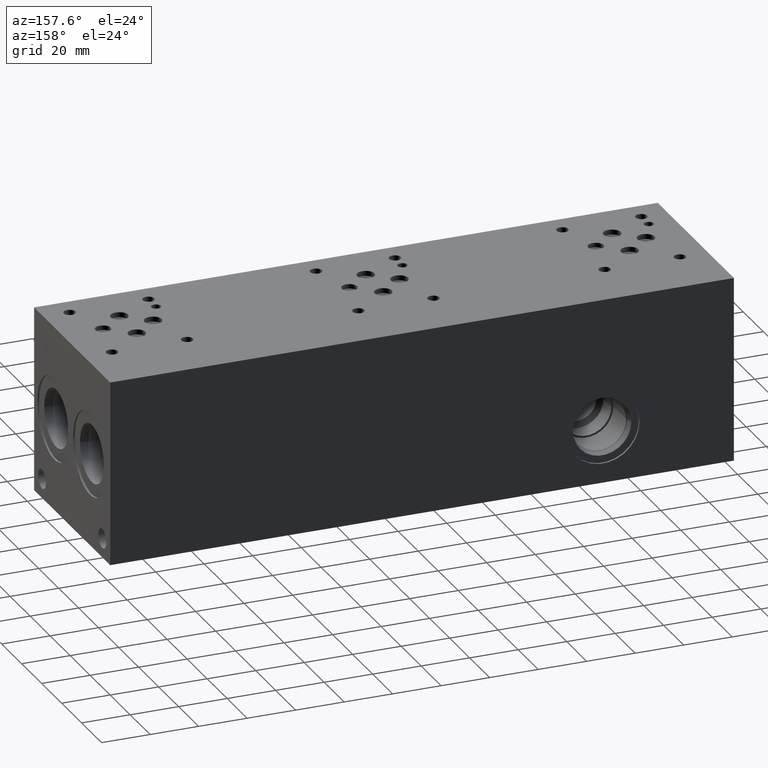
[diagram: clean part render]
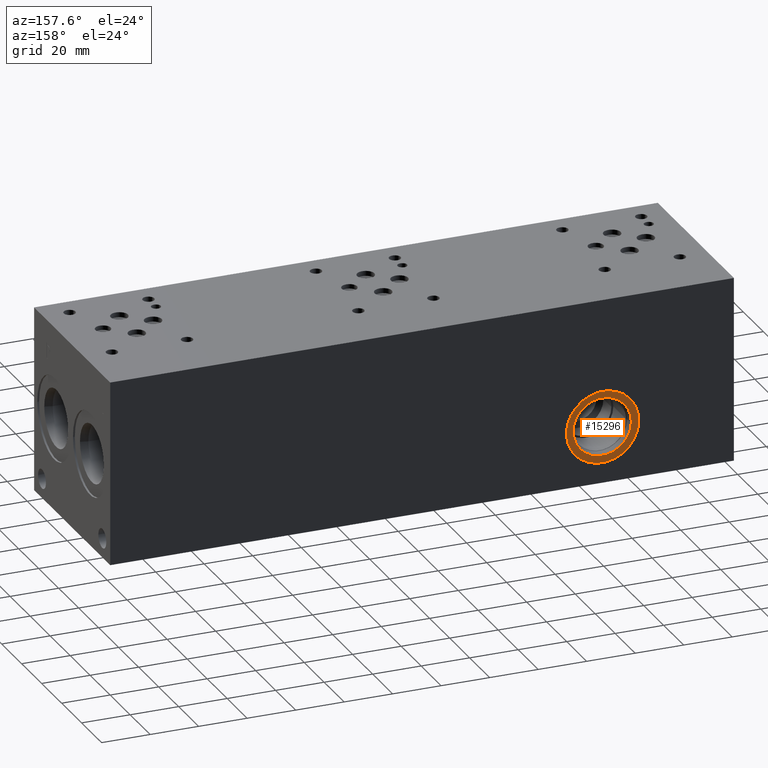
[diagram: same view with one face highlighted and labeled with its STEP entity id]
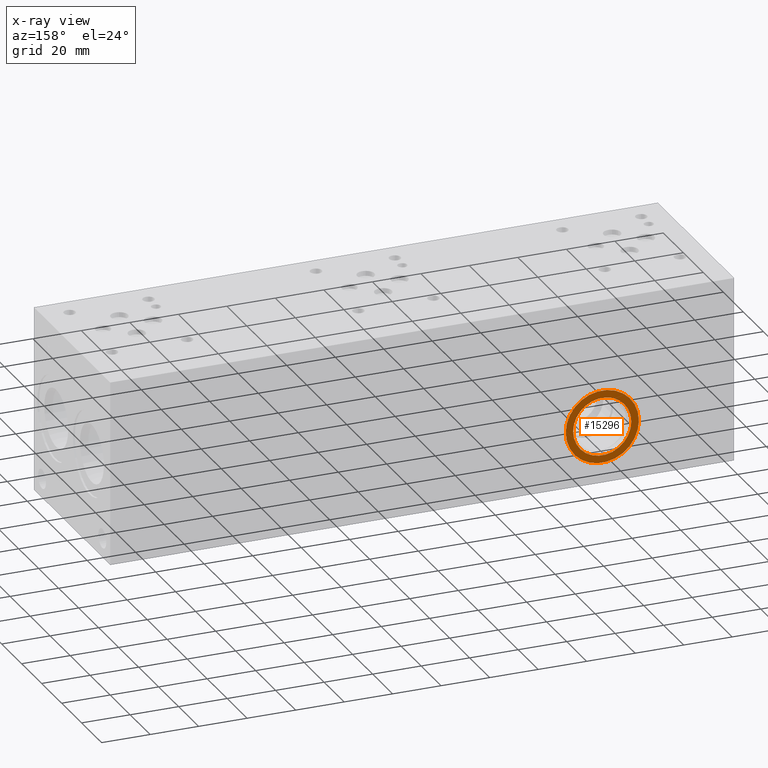
[diagram: x-ray of the same camera — body ghosted, the highlighted face saturated]
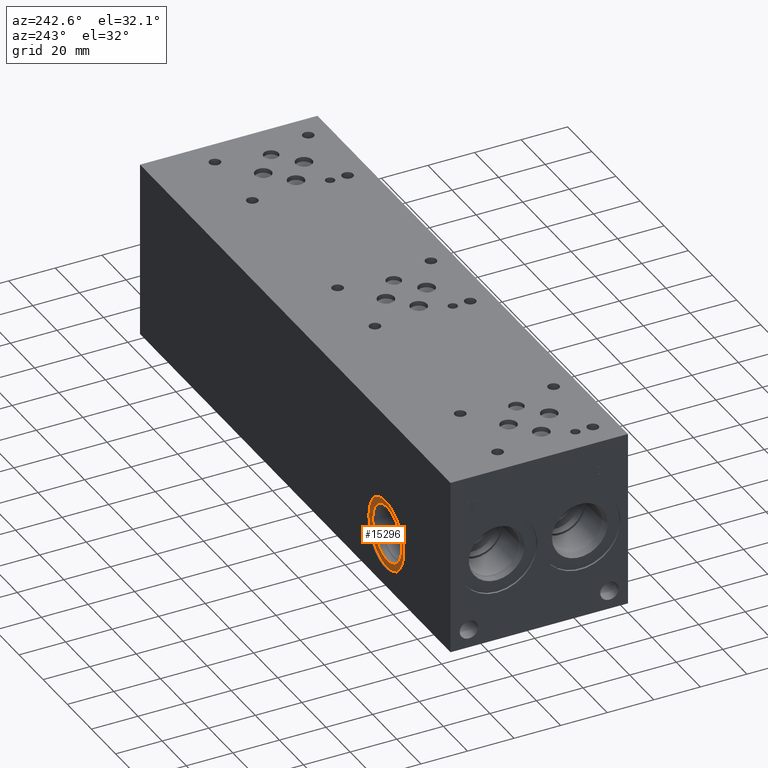
[diagram: same view with one face highlighted and labeled with its STEP entity id]
A machine part, auxiliary view. The second image highlights one B-rep face of the part: STEP entity #15296.
The next image is the same camera in x-ray: the body ghosted, the highlighted face saturated — about 0% of this face is hidden behind the body in this view.
A second angle (auxiliary view) of the same face is appended — the face is thin or edge-on in the first view.
In plain terms, the highlighted planar face has unit normal (0, -1, 0).
Its self-contained STEP definition (entity closure, byte-faithful):
#285=CIRCLE('',#15992,15.08);
#286=CIRCLE('',#15993,15.08);
#287=CIRCLE('',#15995,12.);
#288=CIRCLE('',#15996,12.);
#727=FACE_BOUND('',#2824,.T.);
#1947=FACE_OUTER_BOUND('',#2823,.T.);
#2823=EDGE_LOOP('',(#12587,#12588));
#2824=EDGE_LOOP('',(#12589,#12590));
#6877=VERTEX_POINT('',#25837);
#6878=VERTEX_POINT('',#25839);
#6879=VERTEX_POINT('',#25843);
#6880=VERTEX_POINT('',#25844);
#8891=EDGE_CURVE('',#6877,#6878,#285,.T.);
#8892=EDGE_CURVE('',#6878,#6877,#286,.T.);
#8893=EDGE_CURVE('',#6879,#6880,#287,.T.);
#8894=EDGE_CURVE('',#6880,#6879,#288,.T.);
#12587=ORIENTED_EDGE('',*,*,#8892,.F.);
#12588=ORIENTED_EDGE('',*,*,#8891,.F.);
#12589=ORIENTED_EDGE('',*,*,#8893,.T.);
#12590=ORIENTED_EDGE('',*,*,#8894,.T.);
#14146=PLANE('',#15994);
#15296=ADVANCED_FACE('',(#1947,#727),#14146,.F.);
#15992=AXIS2_PLACEMENT_3D('',#25840,#18639,#18640);
#15993=AXIS2_PLACEMENT_3D('',#25841,#18641,#18642);
#15994=AXIS2_PLACEMENT_3D('',#25842,#18643,#18644);
#15995=AXIS2_PLACEMENT_3D('',#25845,#18645,#18646);
#15996=AXIS2_PLACEMENT_3D('',#25846,#18647,#18648);
#18639=DIRECTION('center_axis',(0.,-1.,0.));
#18640=DIRECTION('ref_axis',(1.,0.,0.));
#18641=DIRECTION('center_axis',(0.,-1.,0.));
#18642=DIRECTION('ref_axis',(1.,0.,0.));
#18643=DIRECTION('center_axis',(0.,-1.,0.));
#18644=DIRECTION('ref_axis',(0.,0.,-1.));
#18645=DIRECTION('center_axis',(0.,-1.,0.));
#18646=DIRECTION('ref_axis',(1.,0.,0.));
#18647=DIRECTION('center_axis',(0.,-1.,0.));
#18648=DIRECTION('ref_axis',(1.,0.,0.));
#25837=CARTESIAN_POINT('',(38.895,75.41,23.0124));
#25839=CARTESIAN_POINT('',(69.055,75.41,23.0124));
#25840=CARTESIAN_POINT('Origin',(53.975,75.41,23.0124));
#25841=CARTESIAN_POINT('Origin',(53.975,75.41,23.0124));
#25842=CARTESIAN_POINT('Origin',(65.975,75.41,23.0124));
#25843=CARTESIAN_POINT('',(65.975,75.41,23.0124));
#25844=CARTESIAN_POINT('',(41.975,75.41,23.0124));
#25845=CARTESIAN_POINT('Origin',(53.975,75.41,23.0124));
#25846=CARTESIAN_POINT('Origin',(53.975,75.41,23.0124));